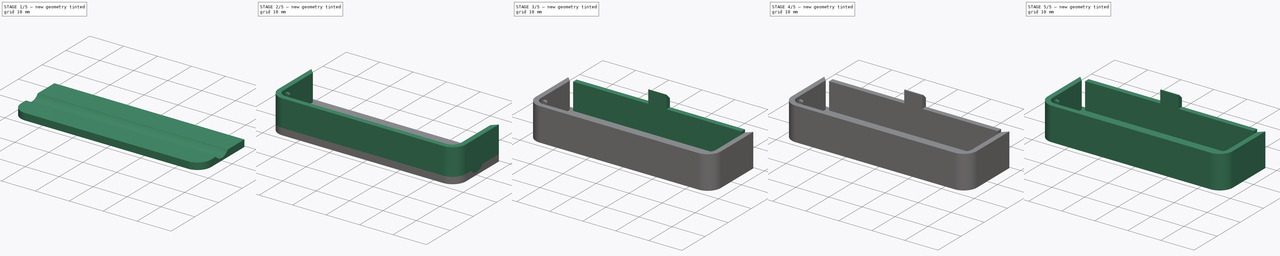
[diagram: build sequence overview — one tinted view per stage of 5, left to right]
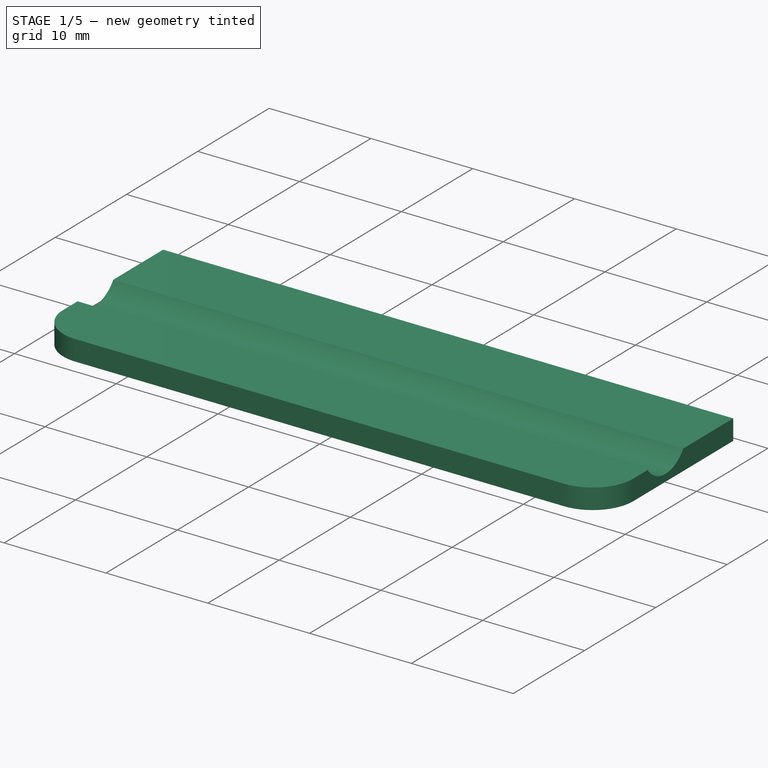
[diagram: stage 1 of 5 — iso view after this stage's code; geometry added in this stage tinted green]
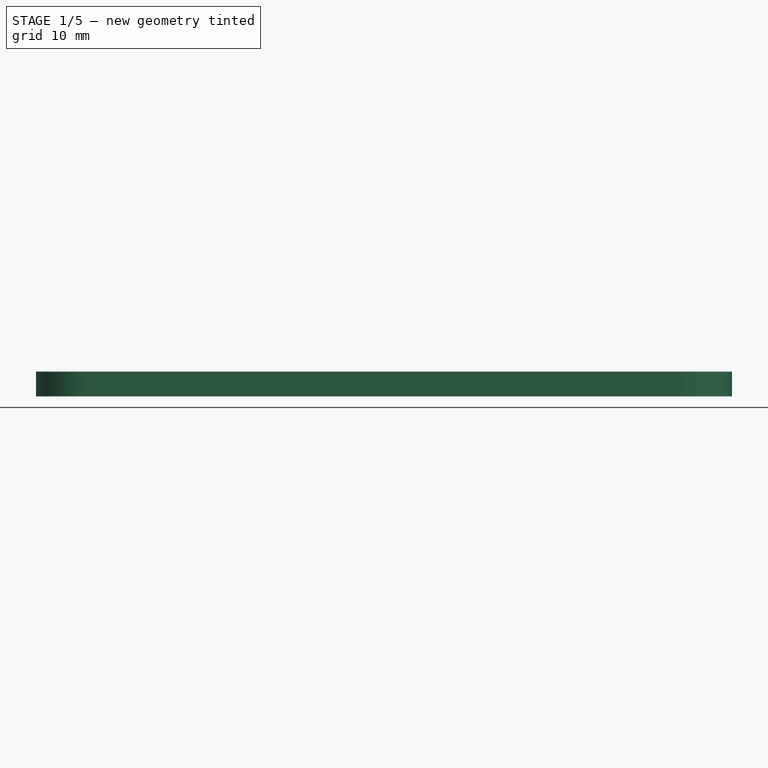
[diagram: stage 1 of 5 — front view after this stage's code; geometry added in this stage tinted green]
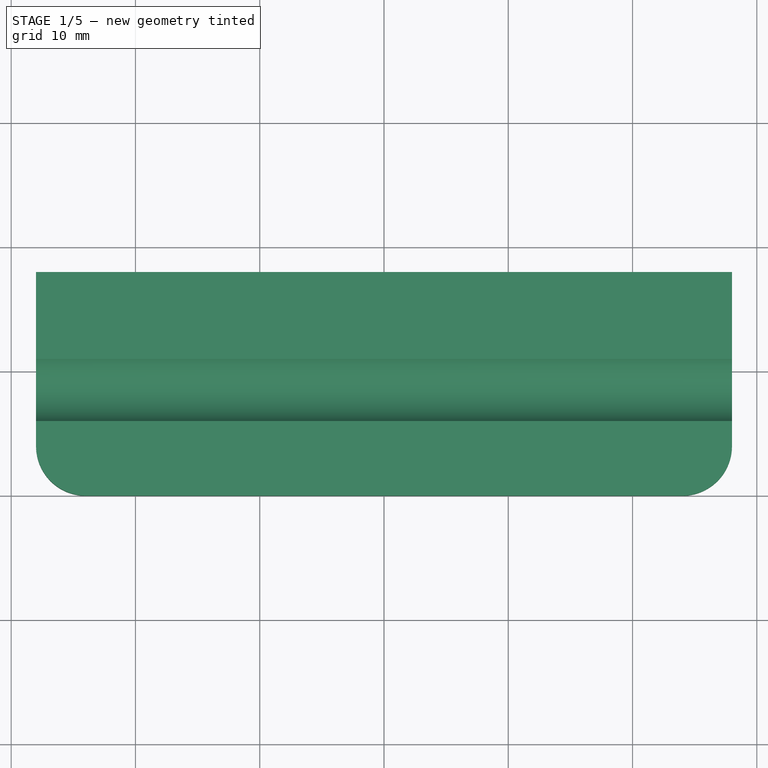
[diagram: stage 1 of 5 — top view after this stage's code; geometry added in this stage tinted green]
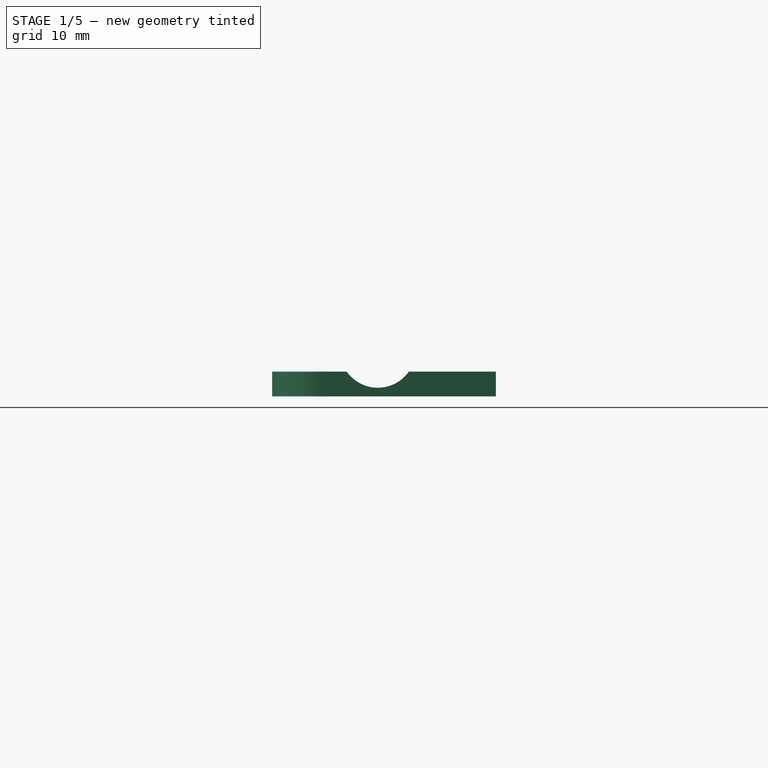
[diagram: stage 1 of 5 — right view after this stage's code; geometry added in this stage tinted green]
FCSTD DOCUMENT  (FreeCAD 0.19.4R1_voidlinux)
Label: battery_container
License: All rights reserved
LicenseURL: http://en.wikipedia.org/wiki/All_rights_reserved
objects: Sketcher::SketchObject×12, PartDesign::Pad×9, Part::Part2DObjectPython×4, Part::Extrusion×4, PartDesign::Fillet×2, PartDesign::CoordinateSystem×2, PartDesign::Pocket×1, PartDesign::Draft×1, PartDesign::Body×1, App::Part×1
note: 49 computed .brp shape members not serialized (recipe doc carries the construction recipe); baked Part::Feature solids carry a one-line shape summary decoded from their .brp

FEATURE [Sketcher::SketchObject] Sketch
  FullyConstrained = true
  MapMode = 5
  Support = -> [XY_Plane001]
  sketch-geometry (6):
    g0: LineSegment StartX=-28 StartY=18 StartZ=0 EndX=28 EndY=18 EndZ=0
    g1: LineSegment StartX=28 StartY=18 StartZ=0 EndX=28 EndY=4 EndZ=0
    g2: LineSegment StartX=24 StartY=7.1045e-12 StartZ=0 EndX=-24 EndY=7.1045e-12 EndZ=0
    g3: LineSegment StartX=-28 StartY=4 StartZ=0 EndX=-28 EndY=18 EndZ=0
    g4: ArcOfCircle CenterX=24 CenterY=4 CenterZ=0 NormalX=0 NormalY=0 NormalZ=1 AngleXU=0 Radius=4 StartAngle=4.71239 EndAngle=6.28319
    g5: ArcOfCircle CenterX=-24 CenterY=4 CenterZ=0 NormalX=0 NormalY=0 NormalZ=1 AngleXU=0 Radius=4 StartAngle=3.14159 EndAngle=4.71239
  constraints (15):
    c: Coincident(g0,g1)
    c: Coincident(g3,g0)
    c: Horizontal(g0)
    c: Vertical(g1)
    c: Vertical(g3)
    c: Tangent(g1,g4) = 1.5708
    c: Tangent(g2,g4) = 1.5708
    c: Tangent(g3,g5) = 1.5708
    c: Tangent(g2,g5) = 1.5708
    c: PointOnObject(g2,g-1)
    c: Symmetric(g2,g2,g-2)
    c: Equal(g4,g5)
    c: Distance(g0) = 56
    c: DistanceY(g2,g0) = 18
    c: Radius(g5) = 4
FEATURE [PartDesign::Pad] Pad
  Direction = (1,1,1)
  Length = 2
  Length2 = 100
  Profile = -> Sketch
  Type = 0
FEATURE [Sketcher::SketchObject] Sketch002  label="groove_sketch"
  ExternalGeometry = -> [Pad]
  FullyConstrained = true
  MapMode = 5
  Placement = pos=(0,0,2) rot=(0,0,1;0rad)
  Support = -> [Pad]
  sketch-geometry (4):
    g0: LineSegment StartX=-28 StartY=11 StartZ=0 EndX=28 EndY=11 EndZ=0
    g1: LineSegment StartX=28 StartY=11 StartZ=0 EndX=28 EndY=6 EndZ=0
    g2: LineSegment StartX=28 StartY=6 StartZ=0 EndX=-28 EndY=6 EndZ=0
    g3: LineSegment StartX=-28 StartY=6 StartZ=0 EndX=-28 EndY=11 EndZ=0
  constraints (12):
    c: Coincident(g0,g1)
    c: Coincident(g1,g2)
    c: Coincident(g2,g3)
    c: Coincident(g3,g0)
    c: Horizontal(g0)
    c: Horizontal(g2)
    c: Vertical(g1)
    c: Vertical(g3)
    c: DistanceY(g3,g3) = 5
    c: PointOnObject(g0,g-4)
    c: PointOnObject(g0,g-3)
    c: DistanceY(g0,g-4) = 7
FEATURE [PartDesign::Pocket] Pocket
  BaseFeature = -> Pad
  Length = 1.5
  Length2 = 100
  Profile = -> Sketch002
  Type = 0
FEATURE [Sketcher::SketchObject] Sketch001  label="walls_sketch"
  FullyConstrained = true
  MapMode = 5
  Placement = pos=(0,0,2) rot=(0,0,1;0rad)
  Support = -> [Pad]
  sketch-geometry (15):
    g0: LineSegment StartX=-28 StartY=18 StartZ=0 EndX=-28 EndY=4 EndZ=0
    g1: LineSegment StartX=-24 StartY=7.1045e-12 StartZ=0 EndX=24 EndY=7.1472e-12 EndZ=0
    g2: LineSegment StartX=28 StartY=4 StartZ=0 EndX=28 EndY=18 EndZ=0
    g3: ArcOfCircle CenterX=-24 CenterY=4 CenterZ=0 NormalX=0 NormalY=0 NormalZ=1 AngleXU=0 Radius=4 StartAngle=3.14159 EndAngle=4.71239
    g4: ArcOfCircle CenterX=24 CenterY=4 CenterZ=0 NormalX=0 NormalY=0 NormalZ=1 AngleXU=0 Radius=4 StartAngle=4.71239 EndAngle=6.28319
    g5: LineSegment StartX=-26.5 StartY=16.5 StartZ=0 EndX=-26.5 EndY=4 EndZ=0
    g6: LineSegment StartX=-28 StartY=4 StartZ=0 EndX=28 EndY=4 EndZ=0
    g7: LineSegment StartX=-28 StartY=18 StartZ=0 EndX=-26.5 EndY=16.5 EndZ=0
    g8: LineSegment StartX=-24 StartY=1.5 StartZ=0 EndX=24 EndY=1.5 EndZ=0
    g9: LineSegment StartX=-24 StartY=4 StartZ=0 EndX=-24 EndY=7.1045e-12 EndZ=0
    g10: LineSegment StartX=24 StartY=4 StartZ=0 EndX=24 EndY=7.1472e-12 EndZ=0
    g11: ArcOfCircle CenterX=-24 CenterY=4 CenterZ=0 NormalX=0 NormalY=0 NormalZ=1 AngleXU=0 Radius=2.5 StartAngle=3.14159 EndAngle=4.71239
    g12: LineSegment StartX=26.5 StartY=16.5 StartZ=0 EndX=26.5 EndY=4 EndZ=0
    g13: ArcOfCircle CenterX=24 CenterY=4 CenterZ=0 NormalX=0 NormalY=0 NormalZ=1 AngleXU=0 Radius=2.5 StartAngle=4.71239 EndAngle=6.28319
    g14: LineSegment StartX=26.5 StartY=16.5 StartZ=0 EndX=28 EndY=18 EndZ=0
  constraints (37):
    c: Tangent(g0,g3) = -1.5708
    c: Tangent(g1,g3) = -1.5708
    c: Tangent(g2,g4) = -1.5708
    c: Tangent(g1,g4) = -1.5708
    c: Vertical(g5)
    c: Coincident(g6,g0)
    c: Coincident(g6,g2)
    c: Coincident(g7,g0)
    c: Coincident(g7,g5)
    c: DistanceX(g0,g5) = 1.5
    c: Horizontal(g8)
    c: Coincident(g9,g3)
    c: Coincident(g9,g1)
    c: Coincident(g10,g4)
    c: Coincident(g10,g1)
    c: Tangent(g5,g11) = -1.5708
    c: Tangent(g8,g11) = -1.5708
    c: PointOnObject(g8,g9)
    c: PointOnObject(g5,g6)
    c: DistanceY(g5,g0) = 1.5
    c: Vertical(g12)
    c: Tangent(g12,g13) = 1.5708
    c: Tangent(g8,g13) = -1.5708
    c: PointOnObject(g12,g6)
    c: PointOnObject(g8,g10)
    c: Coincident(g14,g12)
    c: Coincident(g14,g2)
    c: DistanceY(g12,g2) = 1.5
    c: Symmetric(g1,g1,g-2)
    c: Distance(g1) = 48
    c: Distance(g0) = 14
    c: Vertical(g0)
    c: DistanceX(g12,g2) = 1.5
    c: DistanceY(g2,g2) = 14
    c: Horizontal(g6)
    c: PointOnObject(g1,g-1)
    c: DistanceX(g8,g2) = 4
FEATURE [Sketcher::SketchObject] Sketch003
  ExternalGeometry = -> [Pocket]
  FullyConstrained = true
  MapMode = 5
  Placement = pos=(-28,0,0) rot=(0.57735,-0.57735,-0.57735;2.0944rad)
  Support = -> [Pocket]
  sketch-geometry (5):
    g0: ArcOfCircle CenterX=-8.5 CenterY=3.75385 CenterZ=0 NormalX=0 NormalY=0 NormalZ=1 AngleXU=0 Radius=3.05385 StartAngle=3.75335 EndAngle=5.67143
    g1: LineSegment StartX=-8.5 StartY=3.75385 StartZ=0 EndX=-8.5 EndY=0.7 EndZ=0
    g2: LineSegment StartX=-11 StartY=2 StartZ=0 EndX=-11 EndY=0.5 EndZ=0
    g3: LineSegment StartX=-11 StartY=0.5 StartZ=0 EndX=-6 EndY=0.5 EndZ=0
    g4: LineSegment StartX=-6 StartY=0.5 StartZ=0 EndX=-6 EndY=2 EndZ=0
  constraints (12):
    c: Coincident(g0,g-3)
    c: Coincident(g0,g-5)
    c: Coincident(g1,g0)
    c: PointOnObject(g1,g0)
    c: Vertical(g1)
    c: Coincident(g2,g0)
    c: Coincident(g2,g-4)
    c: Coincident(g3,g2)
    c: Coincident(g3,g-5)
    c: Coincident(g4,g3)
    c: Coincident(g4,g0)
    c: DistanceY(g2,g1) = 0.2
FEATURE [PartDesign::Pad] Pad001
  BaseFeature = -> Pocket
  Direction = (1,1,1)
  Length = 56
  Length2 = 100
  Profile = -> Sketch003
  Reversed = true
  Type = 0
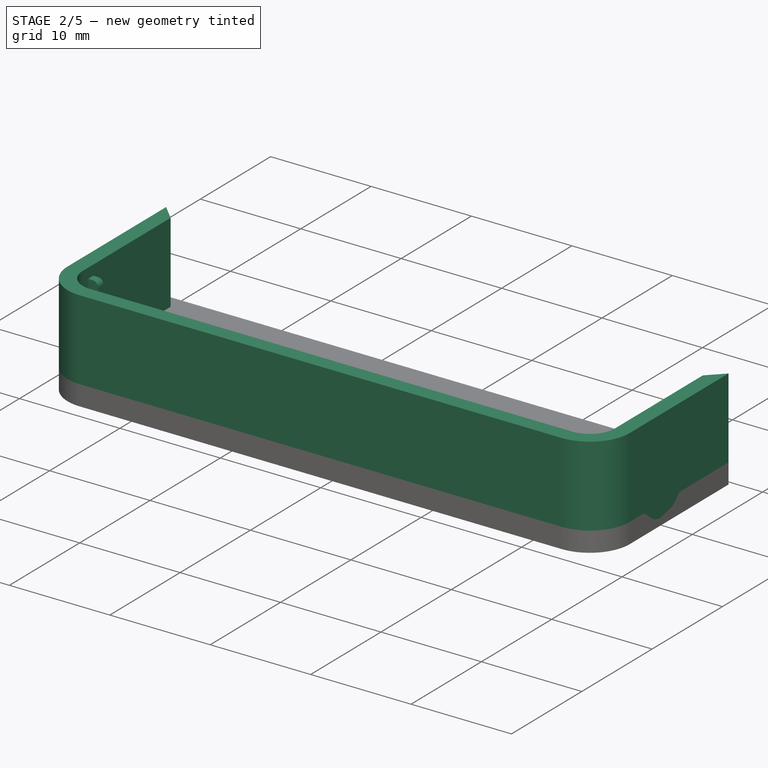
[diagram: stage 2 of 5 — iso view after this stage's code; geometry added in this stage tinted green]
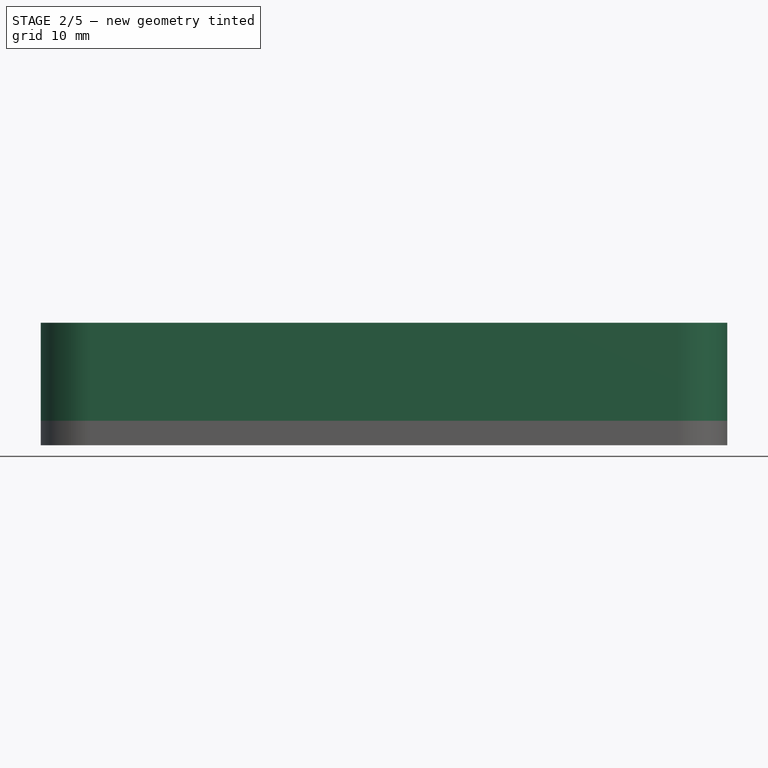
[diagram: stage 2 of 5 — front view after this stage's code; geometry added in this stage tinted green]
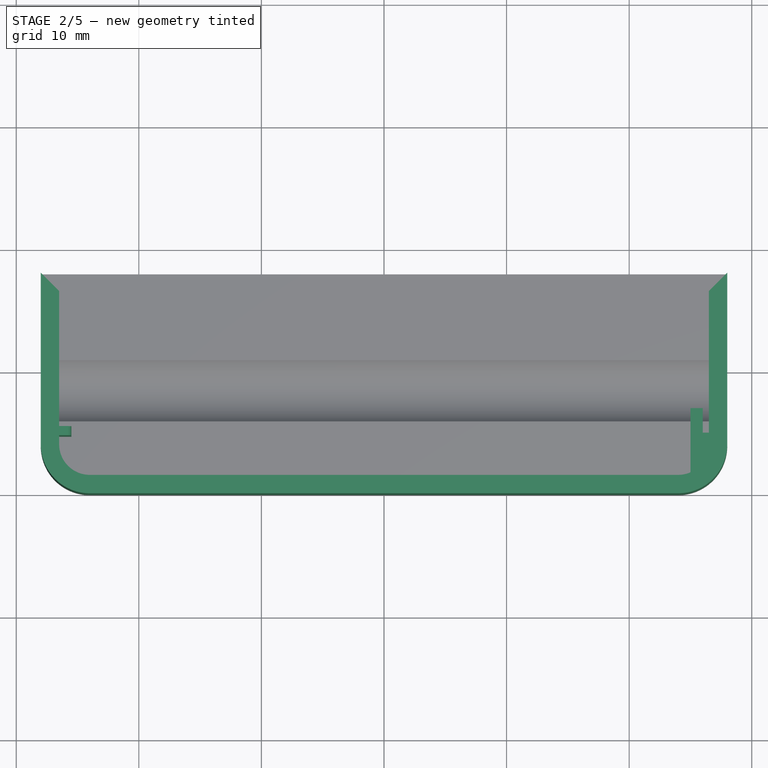
[diagram: stage 2 of 5 — top view after this stage's code; geometry added in this stage tinted green]
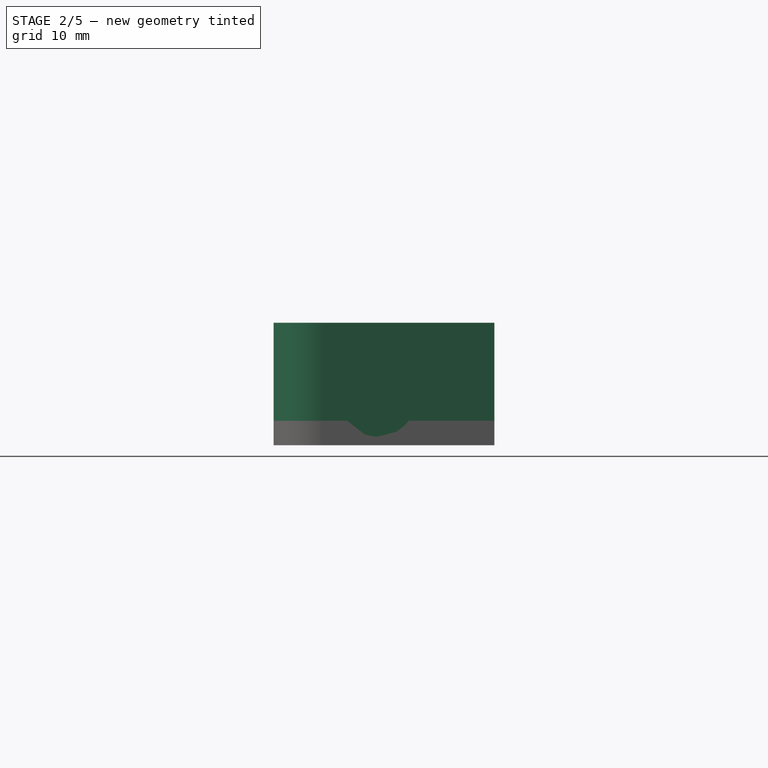
[diagram: stage 2 of 5 — right view after this stage's code; geometry added in this stage tinted green]
FEATURE [PartDesign::Pad] Pad002
  BaseFeature = -> Pad001
  Direction = (1,1,1)
  Length = 8
  Length2 = 2
  Profile = -> Sketch001
  Type = 4
FEATURE [Sketcher::SketchObject] Sketch004
  ExternalGeometry = -> [Pad002]
  FullyConstrained = true
  MapMode = 5
  Placement = pos=(0,0,2) rot=(0,0,1;0rad)
  Support = -> [Pad002]
  sketch-geometry (4):
    g0: LineSegment StartX=-26.5 StartY=5.5 StartZ=0 EndX=-25.5 EndY=5.5 EndZ=0
    g1: LineSegment StartX=-25.5 StartY=5.5 StartZ=0 EndX=-25.5 EndY=4.75 EndZ=0
    g2: LineSegment StartX=-25.5 StartY=4.75 StartZ=0 EndX=-26.5 EndY=4.75 EndZ=0
    g3: LineSegment StartX=-26.5 StartY=4.75 StartZ=0 EndX=-26.5 EndY=5.5 EndZ=0
  constraints (12):
    c: Coincident(g0,g1)
    c: Coincident(g1,g2)
    c: Coincident(g2,g3)
    c: Coincident(g3,g0)
    c: Horizontal(g0)
    c: Horizontal(g2)
    c: Vertical(g1)
    c: Vertical(g3)
    c: PointOnObject(g0,g-4)
    c: DistanceY(g0,g-4) = 0.5
    c: Distance(g2) = 1
    c: Distance(g1) = 0.75
FEATURE [PartDesign::Pad] Pad003
  BaseFeature = -> Pad002
  Direction = (1,1,1)
  Length = 7
  Length2 = 100
  Profile = -> Sketch004
  Type = 0
FEATURE [PartDesign::Fillet] Fillet
  Base = -> Pad003 [Edge82]
  BaseFeature = -> Pad003
  Radius = 0.5
  SupportTransform = false
FEATURE [Sketcher::SketchObject] Sketch005
  ExternalGeometry = -> [Pad002]
  FullyConstrained = true
  MapMode = 5
  Placement = pos=(0,0,2) rot=(0,0,1;0rad)
  Support = -> [Pad002]
  sketch-geometry (6):
    g0: LineSegment StartX=26.5 StartY=5 StartZ=0 EndX=26.5 EndY=1.70871 EndZ=0
    g1: LineSegment StartX=26.5 StartY=1.70871 StartZ=0 EndX=25 EndY=1.70871 EndZ=0
    g2: LineSegment StartX=25 StartY=1.70871 StartZ=0 EndX=25 EndY=7 EndZ=0
    g3: LineSegment StartX=26.5 StartY=5 StartZ=0 EndX=26 EndY=5 EndZ=0
    g4: LineSegment StartX=26 StartY=5 StartZ=0 EndX=26 EndY=7 EndZ=0
    g5: LineSegment StartX=25 StartY=7 StartZ=0 EndX=26 EndY=7 EndZ=0
  constraints (18):
    c: Coincident(g0,g1)
    c: Coincident(g1,g2)
    c: Horizontal(g1)
    c: Vertical(g0)
    c: Vertical(g2)
    c: Coincident(g3,g0)
    c: Horizontal(g3)
    c: Coincident(g4,g3)
    c: Vertical(g4)
    c: Coincident(g5,g2)
    c: Horizontal(g5)
    c: Coincident(g5,g4)
    c: DistanceY(g-4,g2) = 1
    c: DistanceX(g2,g0) = 1.5
    c: Distance(g5) = 1
    c: PointOnObject(g0,g-4)
    c: PointOnObject(g1,g-5)
    c: Distance(g4) = 2
FEATURE [PartDesign::Pad] Pad004
  BaseFeature = -> Fillet
  Direction = (1,1,1)
  Length = 5
  Length2 = 100
  Profile = -> Sketch005
  Type = 0
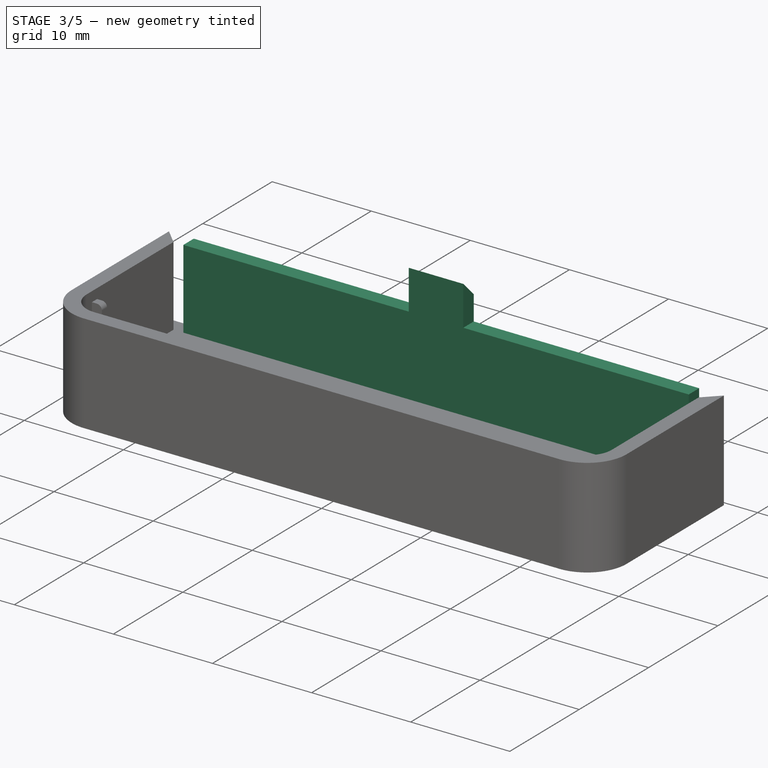
[diagram: stage 3 of 5 — iso view after this stage's code; geometry added in this stage tinted green]
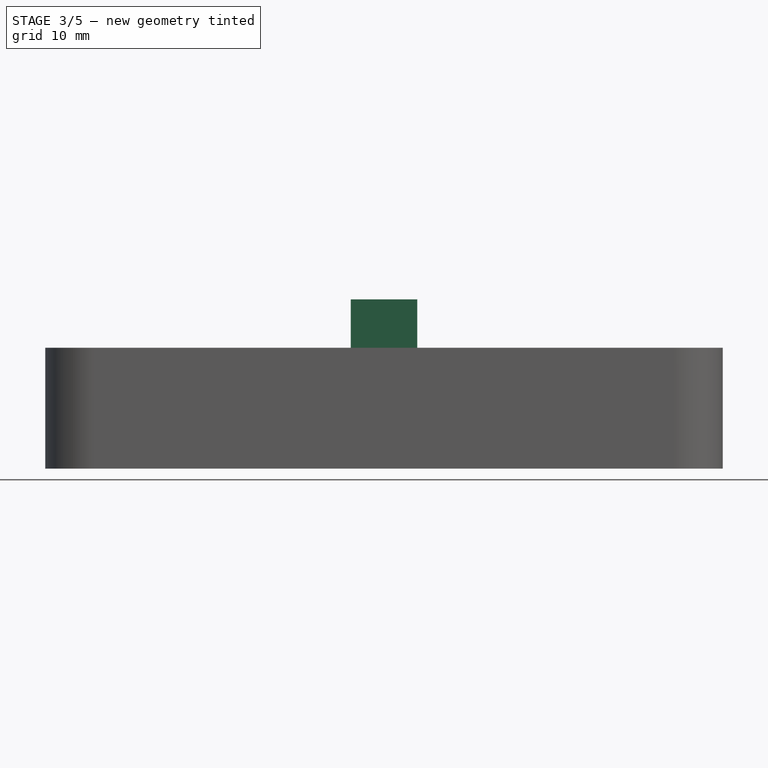
[diagram: stage 3 of 5 — front view after this stage's code; geometry added in this stage tinted green]
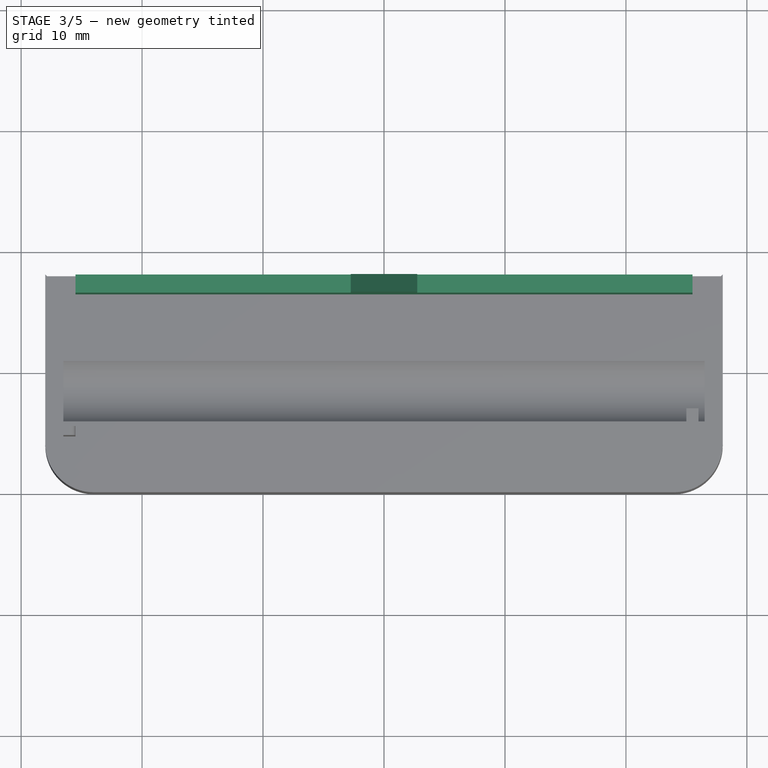
[diagram: stage 3 of 5 — top view after this stage's code; geometry added in this stage tinted green]
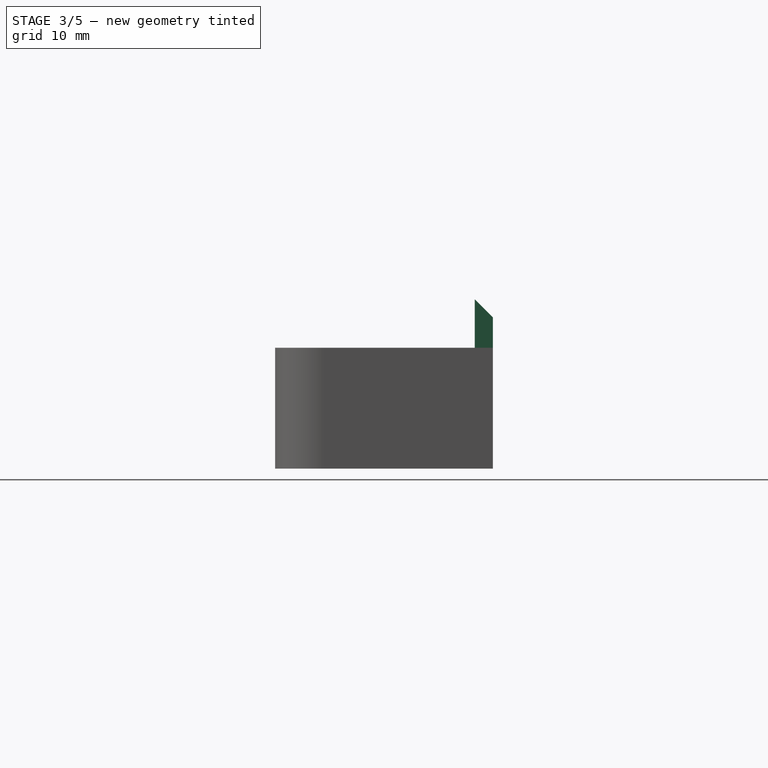
[diagram: stage 3 of 5 — right view after this stage's code; geometry added in this stage tinted green]
FEATURE [Sketcher::SketchObject] Sketch006
  ExternalGeometry = -> [Pad004]
  FullyConstrained = true
  MapMode = 5
  Placement = pos=(0,0,2) rot=(0,0,1;0rad)
  Support = -> [Pad004]
  sketch-geometry (5):
    g0: LineSegment StartX=-25.5 StartY=16.5 StartZ=0 EndX=25.5 EndY=16.5 EndZ=0
    g1: LineSegment StartX=25.5 StartY=16.5 StartZ=0 EndX=25.5 EndY=18 EndZ=0
    g2: LineSegment StartX=25.5 StartY=18 StartZ=0 EndX=-25.5 EndY=18 EndZ=0
    g3: LineSegment StartX=-25.5 StartY=18 StartZ=0 EndX=-25.5 EndY=16.5 EndZ=0
    g4: LineSegment StartX=-26.5 StartY=16.5 StartZ=0 EndX=26.5 EndY=16.5 EndZ=0
  constraints (13):
    c: Coincident(g0,g1)
    c: Coincident(g1,g2)
    c: Coincident(g2,g3)
    c: Coincident(g3,g0)
    c: Horizontal(g2)
    c: Vertical(g1)
    c: Vertical(g3)
    c: Symmetric(g0,g0,g-2)
    c: PointOnObject(g2,g-3)
    c: Coincident(g4,g-4)
    c: Coincident(g4,g-5)
    c: PointOnObject(g0,g4)
    c: DistanceX(g4,g0) = 1
FEATURE [PartDesign::Pad] Pad005
  BaseFeature = -> Pad004
  Direction = (1,1,1)
  Length = 8
  Length2 = 100
  Profile = -> Sketch006
  Type = 0
FEATURE [Sketcher::SketchObject] Sketch007
  ExternalGeometry = -> [Pad005]
  FullyConstrained = true
  MapMode = 5
  Placement = pos=(0,0,10) rot=(0,0,1;0rad)
  Support = -> [Pad005]
  sketch-geometry (4):
    g0: LineSegment StartX=-2.75 StartY=16.5 StartZ=0 EndX=2.75 EndY=16.5 EndZ=0
    g1: LineSegment StartX=2.75 StartY=16.5 StartZ=0 EndX=2.75 EndY=18 EndZ=0
    g2: LineSegment StartX=2.75 StartY=18 StartZ=0 EndX=-2.75 EndY=18 EndZ=0
    g3: LineSegment StartX=-2.75 StartY=18 StartZ=0 EndX=-2.75 EndY=16.5 EndZ=0
  constraints (11):
    c: Coincident(g0,g1)
    c: Coincident(g1,g2)
    c: Coincident(g2,g3)
    c: Coincident(g3,g0)
    c: Horizontal(g2)
    c: Vertical(g1)
    c: Vertical(g3)
    c: PointOnObject(g2,g-3)
    c: PointOnObject(g0,g-4)
    c: Symmetric(g0,g0,g-2)
    c: Distance(g2) = 5.5
FEATURE [PartDesign::Pad] Pad006
  BaseFeature = -> Pad005
  Direction = (1,1,1)
  Length = 4
  Length2 = 100
  Profile = -> Sketch007
  Type = 0
FEATURE [PartDesign::Draft] Draft
  Angle = 45
  Base = -> Pad006 [Face49]
  BaseFeature = -> Pad006
  Reversed = true
  SupportTransform = false
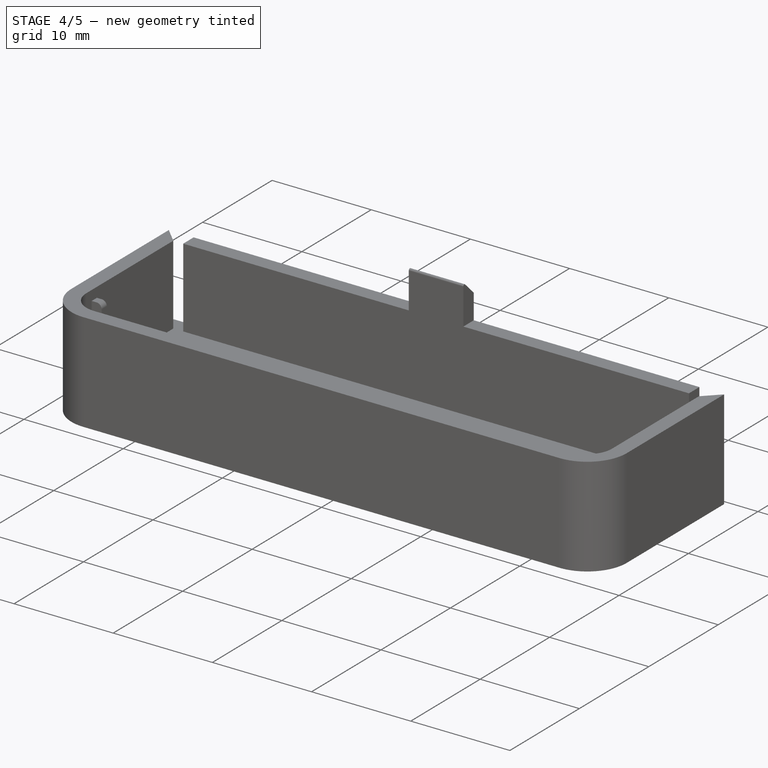
[diagram: stage 4 of 5 — iso view after this stage's code; geometry added in this stage tinted green]
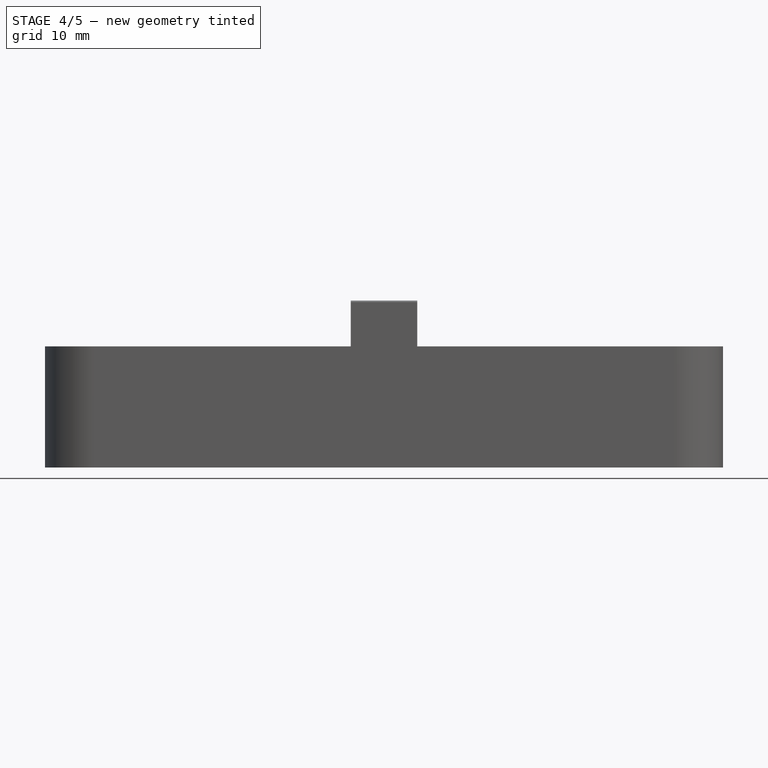
[diagram: stage 4 of 5 — front view after this stage's code; geometry added in this stage tinted green]
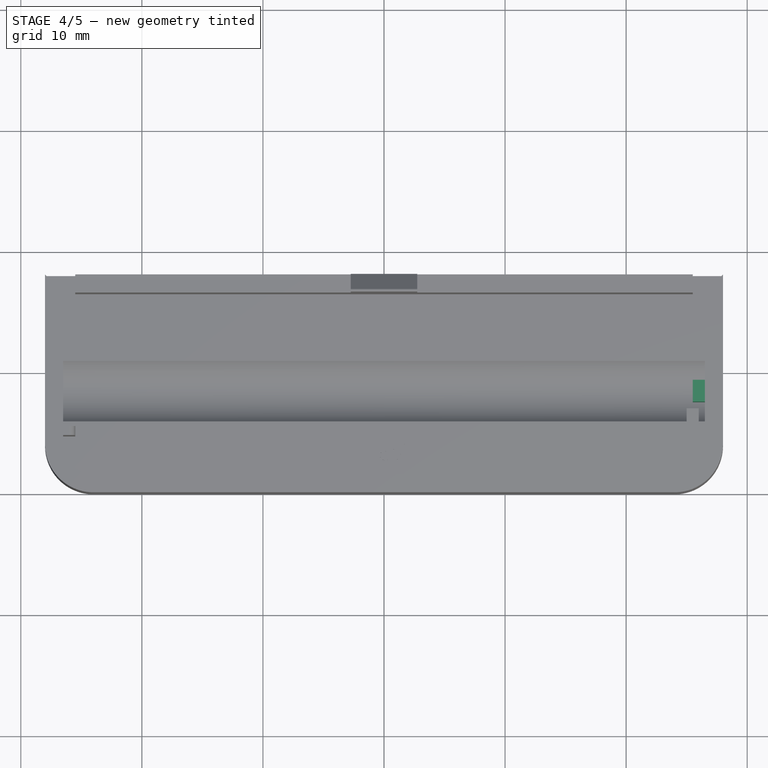
[diagram: stage 4 of 5 — top view after this stage's code; geometry added in this stage tinted green]
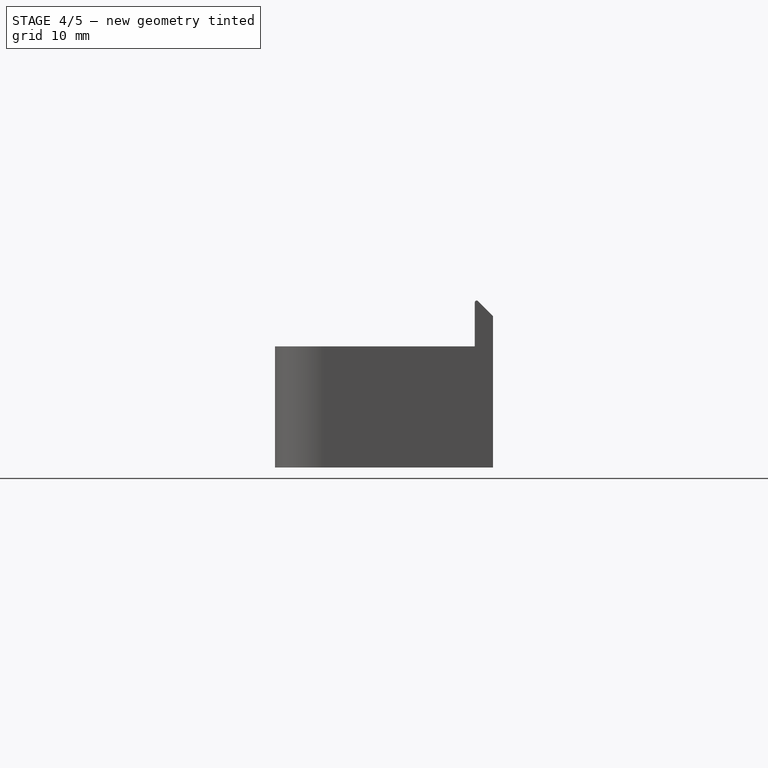
[diagram: stage 4 of 5 — right view after this stage's code; geometry added in this stage tinted green]
FEATURE [PartDesign::Fillet] Fillet001
  Base = -> Draft [Edge123]
  BaseFeature = -> Draft
  Radius = 0.15
  SupportTransform = false
FEATURE [Sketcher::SketchObject] Sketch008  label="3A8_outline"
  ExternalGeometry = -> [Fillet001]
  FullyConstrained = true
  MapMode = 5
  Placement = pos=(0,0,2) rot=(0,0,1;0rad)
  Support = -> [Fillet001]
  sketch-geometry (4):
    g0: LineSegment StartX=-21.5 StartY=15.5 StartZ=0 EndX=-15.5 EndY=15.5 EndZ=0
    g1: LineSegment StartX=-15.5 StartY=15.5 StartZ=0 EndX=-15.5 EndY=12.5 EndZ=0
    g2: LineSegment StartX=-15.5 StartY=12.5 StartZ=0 EndX=-21.5 EndY=12.5 EndZ=0
    g3: LineSegment StartX=-21.5 StartY=12.5 StartZ=0 EndX=-21.5 EndY=15.5 EndZ=0
  constraints (12):
    c: Coincident(g0,g1)
    c: Coincident(g1,g2)
    c: Coincident(g2,g3)
    c: Coincident(g3,g0)
    c: Horizontal(g0)
    c: Horizontal(g2)
    c: Vertical(g1)
    c: Vertical(g3)
    c: DistanceY(g0,g-4) = 1
    c: DistanceX(g-3,g0) = 5
    c: Distance(g1) = 3
    c: Distance(g2) = 6
FEATURE [Sketcher::SketchObject] Sketch009  label="battery_sign_outline"
  ExternalGeometry = -> [Fillet001]
  FullyConstrained = true
  MapMode = 5
  Placement = pos=(0,0,2) rot=(0,0,1;0rad)
  Support = -> [Fillet001]
  sketch-geometry (4):
    g0: LineSegment StartX=-7.5 StartY=4.5 StartZ=0 EndX=7.5 EndY=4.5 EndZ=0
    g1: LineSegment StartX=7.5 StartY=4.5 StartZ=0 EndX=7.5 EndY=2.5 EndZ=0
    g2: LineSegment StartX=7.5 StartY=2.5 StartZ=0 EndX=-7.5 EndY=2.5 EndZ=0
    g3: LineSegment StartX=-7.5 StartY=2.5 StartZ=0 EndX=-7.5 EndY=4.5 EndZ=0
  constraints (11):
    c: Coincident(g0,g1)
    c: Coincident(g1,g2)
    c: Coincident(g2,g3)
    c: Coincident(g3,g0)
    c: Horizontal(g0)
    c: Vertical(g1)
    c: Vertical(g3)
    c: Symmetric(g1,g2,g-2)
    c: Distance(g0) = 15
    c: DistanceY(g-3,g2) = 1
    c: Distance(g3) = 2
FEATURE [Sketcher::SketchObject] Sketch010
  ExternalGeometry = -> [Sketch009]
  FullyConstrained = true
  MapMode = 5
  Placement = pos=(0,0,2) rot=(0,0,1;0rad)
  Support = -> [Fillet001]
  sketch-geometry (17):
    g0: LineSegment StartX=-4.1 StartY=4.5 StartZ=0 EndX=4.1 EndY=4.5 EndZ=0
    g1: LineSegment StartX=4.1 StartY=2.5 StartZ=0 EndX=-4.1 EndY=2.5 EndZ=0
    g2: LineSegment StartX=-4.1 StartY=2.5 StartZ=0 EndX=-4.1 EndY=4.5 EndZ=0
    g3: LineSegment StartX=4.1 StartY=4.5 StartZ=0 EndX=4.1 EndY=4 EndZ=0
    g4: LineSegment StartX=4.1 StartY=4 StartZ=0 EndX=4.9 EndY=4 EndZ=0
    g5: LineSegment StartX=4.9 StartY=4 StartZ=0 EndX=4.9 EndY=3 EndZ=0
    g6: LineSegment StartX=4.9 StartY=3 StartZ=0 EndX=4.1 EndY=3 EndZ=0
    g7: LineSegment StartX=4.1 StartY=3 StartZ=0 EndX=4.1 EndY=2.5 EndZ=0
    g8: LineSegment StartX=4.9 StartY=3 StartZ=0 EndX=-4.1 EndY=3 EndZ=0
    g9: LineSegment StartX=-4 StartY=4.4 StartZ=0 EndX=4 EndY=4.4 EndZ=0
    g10: LineSegment StartX=4 StartY=4.4 StartZ=0 EndX=4 EndY=3.9 EndZ=0
    g11: LineSegment StartX=4 StartY=3.9 StartZ=0 EndX=4.8 EndY=3.9 EndZ=0
    g12: LineSegment StartX=4.8 StartY=3.9 StartZ=0 EndX=4.8 EndY=3.1 EndZ=0
    g13: LineSegment StartX=4.8 StartY=3.1 StartZ=0 EndX=4 EndY=3.1 EndZ=0
    g14: LineSegment StartX=4 StartY=3.1 StartZ=0 EndX=4 EndY=2.6 EndZ=0
    g15: LineSegment StartX=4 StartY=2.6 StartZ=0 EndX=-4 EndY=2.6 EndZ=0
    g16: LineSegment StartX=-4 StartY=2.6 StartZ=0 EndX=-4 EndY=4.4 EndZ=0
  constraints (50):
    c: Coincident(g1,g2)
    c: Coincident(g2,g0)
    c: Horizontal(g0)
    c: Horizontal(g1)
    c: Vertical(g2)
    c: Equal(g2,g-3)
    c: PointOnObject(g1,g-4)
    c: Coincident(g3,g0)
    c: Vertical(g3)
    c: Coincident(g4,g3)
    c: Horizontal(g4)
    c: Coincident(g5,g4)
    c: Vertical(g5)
    c: Coincident(g6,g5)
    c: Horizontal(g6)
    c: Coincident(g7,g6)
    c: Coincident(g7,g1)
    c: Equal(g3,g7)
    c: Equal(g4,g6)
    c: Vertical(g7)
    c: Distance(g5) = 1
    c: Coincident(g8,g5)
    c: PointOnObject(g8,g2)
    c: Symmetric(g6,g8,g-2)
    c: DistanceX(g0,g4) = 9
    c: Distance(g6) = 0.8
    c: Horizontal(g9)
    c: Coincident(g10,g9)
    c: Vertical(g10)
    c: Coincident(g11,g10)
    c: Horizontal(g11)
    c: Coincident(g12,g11)
    c: Vertical(g12)
    c: Coincident(g13,g12)
    c: Horizontal(g13)
    c: Coincident(g14,g13)
    c: Vertical(g14)
    c: Coincident(g15,g14)
    c: Horizontal(g15)
    c: Coincident(g16,g15)
    c: Coincident(g16,g9)
    c: Vertical(g16)
    c: DistanceY(g9,g0) = 0.1
    c: DistanceX(g1,g15) = 0.1
    c: DistanceY(g1,g15) = 0.1
    c: DistanceX(g9,g0) = 0.1
    c: DistanceY(g10,g3) = 0.1
    c: DistanceX(g11,g4) = 0.1
    c: Equal(g11,g13)
    c: Equal(g14,g10)
FEATURE [PartDesign::Pad] Pad007
  BaseFeature = -> Fillet001
  Direction = (1,1,1)
  Length = 0.1
  Length2 = 100
  Profile = -> Sketch010
  Type = 0
FEATURE [Part::Part2DObjectPython] ShapeString003  label="plus_string001"  # Draft 2D object (typed FeaturePython)
  FontFile = <path>
  Placement = pos=(-1.5,2.8,2) rot=(0,0,1;0rad)
  Size = 1.6
  String = 1.5V
  Tracking = 0
FEATURE [Part::Extrusion] Extrude003  label="1dot5volt"
  Base = -> ShapeString003
  Dir = (0,0,1)
  DirMode = 2
  FaceMakerClass = Part::FaceMakerBullseye
  LengthFwd = 0.1
  LengthRev = 0
  Solid = false
  Symmetric = false
FEATURE [Sketcher::SketchObject] Sketch011
  ExternalGeometry = -> [Pad007]
  FullyConstrained = true
  MapMode = 5
  Placement = pos=(26.5,0,0) rot=(0.57735,-0.57735,-0.57735;2.0944rad)
  Support = -> [Pad007]
  sketch-geometry (5):
    g0: LineSegment StartX=-9.4 StartY=4.33563 StartZ=0 EndX=-7.6 EndY=4.33563 EndZ=0
    g1: LineSegment StartX=-9.4 StartY=4.33563 StartZ=0 EndX=-9.4 EndY=0.835632 EndZ=0
    g2: LineSegment StartX=-7.6 StartY=4.33563 StartZ=0 EndX=-7.6 EndY=0.835632 EndZ=0
    g3: ArcOfCircle CenterX=-8.5 CenterY=3.75385 CenterZ=0 NormalX=0 NormalY=0 NormalZ=1 AngleXU=0 Radius=3.05385 StartAngle=4.41324 EndAngle=5.01154
    g4: LineSegment StartX=-8.5 StartY=3.75385 StartZ=0 EndX=-8.5 EndY=4.33563 EndZ=0
  constraints (14):
    c: Horizontal(g0)
    c: Coincident(g1,g0)
    c: PointOnObject(g1,g-3)
    c: Vertical(g1)
    c: Coincident(g2,g0)
    c: PointOnObject(g2,g-3)
    c: Coincident(g3,g1)
    c: Coincident(g3,g2)
    c: Distance(g0) = 1.8
    c: Distance(g1) = 3.5
    c: Coincident(g4,g-3)
    c: PointOnObject(g4,g0)
    c: Symmetric(g0,g0,g4)
    c: Coincident(g3,g4)
FEATURE [PartDesign::Pad] Pad008
  BaseFeature = -> Pad007
  Direction = (1,1,1)
  Length = 1
  Length2 = 100
  Profile = -> Sketch011
  Type = 0
FEATURE [PartDesign::Body] Body
  Group = -> [Sketch,Pad,Sketch002,Pocket,Sketch001,Sketch003,Pad001,Pad002,Sketch004,Pad003,Fillet,Sketch005,Pad004,Sketch006,Pad005,Sketch007,Pad006,Draft,Fillet001,Sketch008,Sketch009,Sketch010,Pad007,Sketch011,Pad008]
  Origin = -> Origin001
  Tip = -> Pad008
FEATURE [PartDesign::CoordinateSystem] LCS_plus_bottom
  AttacherType = Attacher::AttachEngine3D
  MapMode = 45
  Placement = pos=(26,8.5,4.33563) rot=(0,0,1;0rad)
  Support = -> [Pad008]
FEATURE [PartDesign::CoordinateSystem] LCS_minus_face
  AttacherType = Attacher::AttachEngine3D
  MapMode = 13
  Placement = pos=(-26.5,12.3333,7.33333) rot=(0.57735,0.57735,0.57735;2.0944rad)
  Support = -> [Pad008]
FEATURE [App::Part] Part  label="battery_container"
  Group = -> [Body,ShapeString,Extrude,ShapeString001,Extrude001,ShapeString002,Extrude002,ShapeString003,Extrude003,LCS_plus_bottom,LCS_minus_face]
  Origin = -> Origin
note: 4 file-system paths scrubbed to <path> (originals preserved in the JSON sidecar)
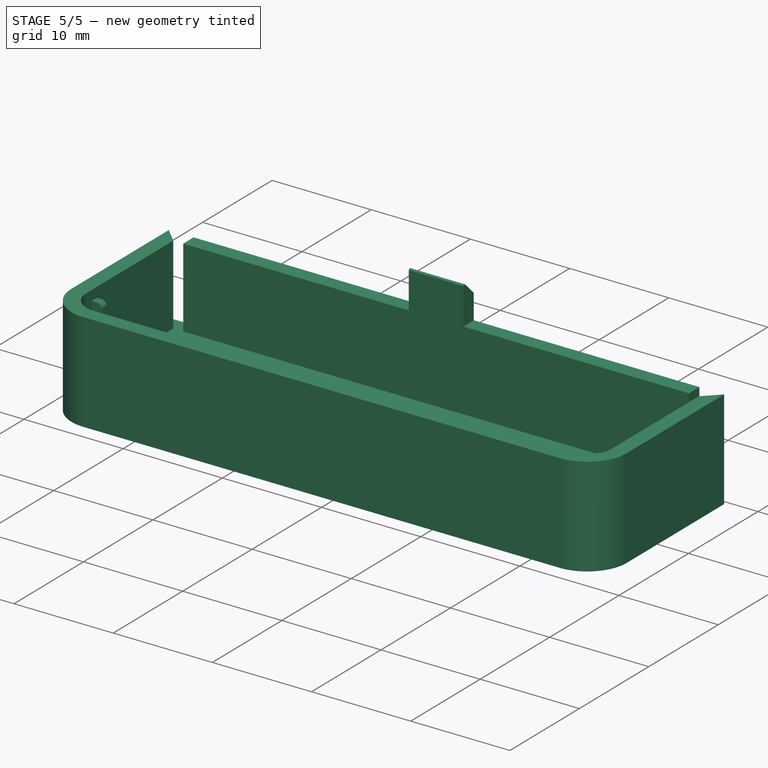
[diagram: stage 5 of 5 — iso view after this stage's code; geometry added in this stage tinted green]
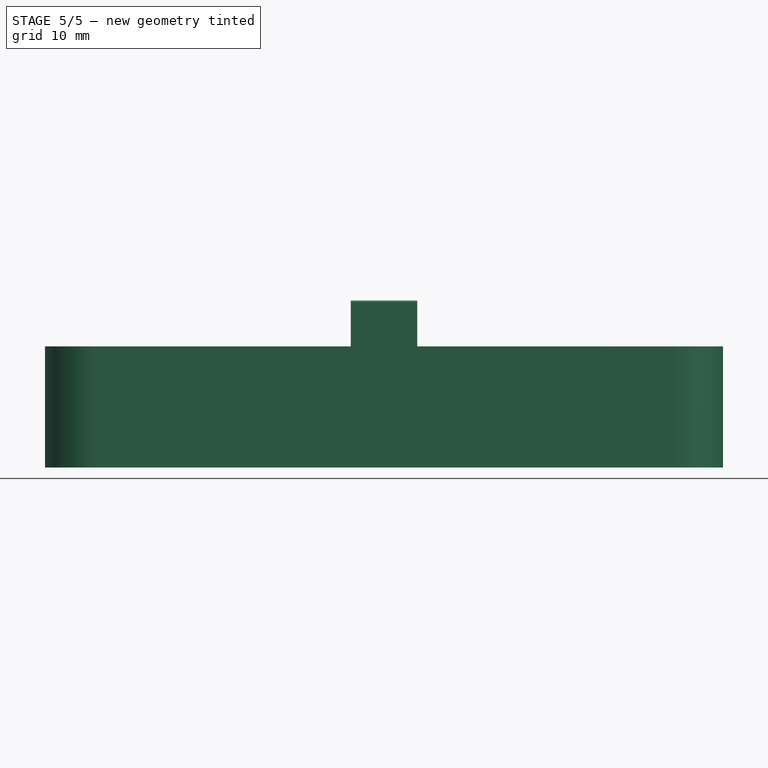
[diagram: stage 5 of 5 — front view after this stage's code; geometry added in this stage tinted green]
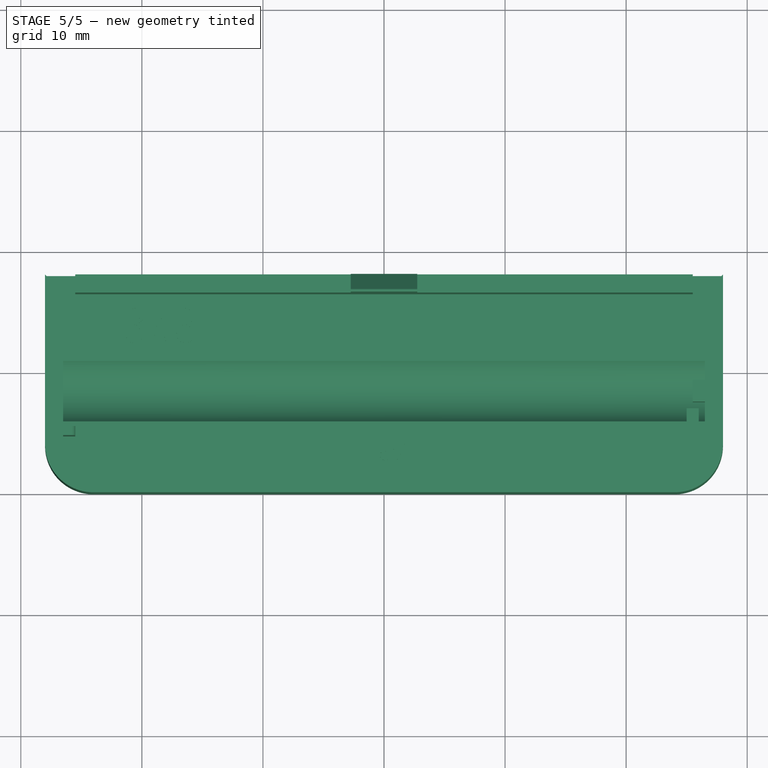
[diagram: stage 5 of 5 — top view after this stage's code; geometry added in this stage tinted green]
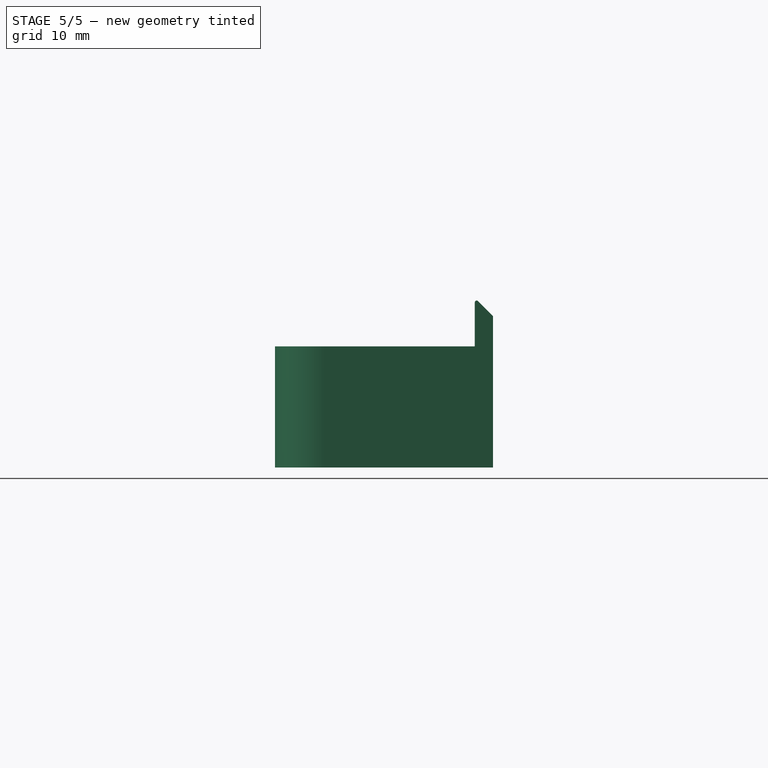
[diagram: stage 5 of 5 — right view after this stage's code; geometry added in this stage tinted green]
FEATURE [Part::Part2DObjectPython] ShapeString  label="3A8_string"  # Draft 2D object (typed FeaturePython)
  FontFile = <path>
  Placement = pos=(-21.5,12.5,2) rot=(0,0,1;0rad)
  Size = 1.8
  String = 3A8
  Tracking = 0.3
FEATURE [Part::Extrusion] Extrude  label="3A8"
  Base = -> ShapeString
  Dir = (0,0,1)
  DirMode = 2
  FaceMakerClass = Part::FaceMakerBullseye
  LengthFwd = 0.1
  LengthRev = 0
  Solid = false
  Symmetric = false
FEATURE [Part::Part2DObjectPython] ShapeString001  label="plus_string"  # Draft 2D object (typed FeaturePython)
  FontFile = <path>
  Placement = pos=(-7.5,2.1,2) rot=(0,0,1;0rad)
  Size = 4
  String = -
  Tracking = 0
FEATURE [Part::Extrusion] Extrude001  label="minus"
  Base = -> ShapeString001
  Dir = (0,0,1)
  DirMode = 2
  FaceMakerClass = Part::FaceMakerBullseye
  LengthFwd = 0.1
  LengthRev = 0
  Solid = false
  Symmetric = false
FEATURE [Part::Part2DObjectPython] ShapeString002  label="minus_string"  # Draft 2D object (typed FeaturePython)
  FontFile = <path>
  Placement = pos=(5.5,2.3,2) rot=(0,0,1;0rad)
  Size = 3
  String = +
  Tracking = 0
FEATURE [Part::Extrusion] Extrude002  label="plus"
  Base = -> ShapeString002
  Dir = (0,0,1)
  DirMode = 2
  FaceMakerClass = Part::FaceMakerBullseye
  LengthFwd = 0.1
  LengthRev = 0
  Solid = false
  Symmetric = false
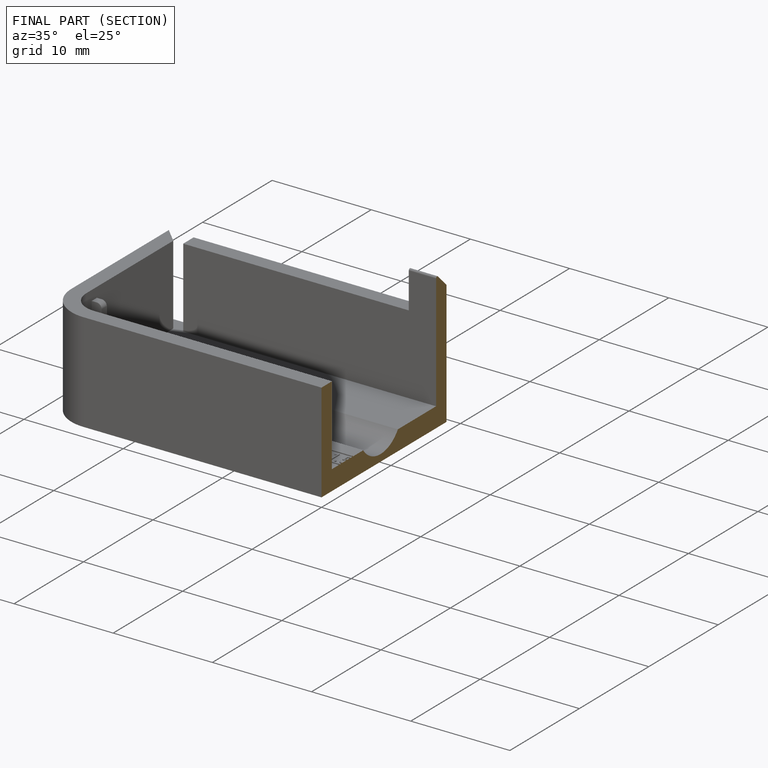
[diagram: finished part — half-section view (interior)]
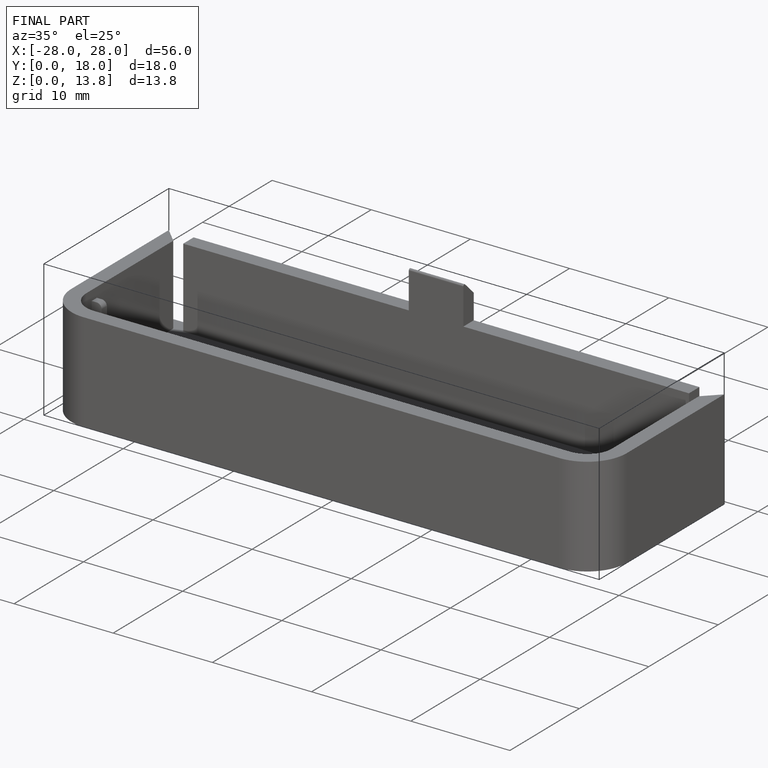
[diagram: finished part — iso view with bounding-box wireframe]
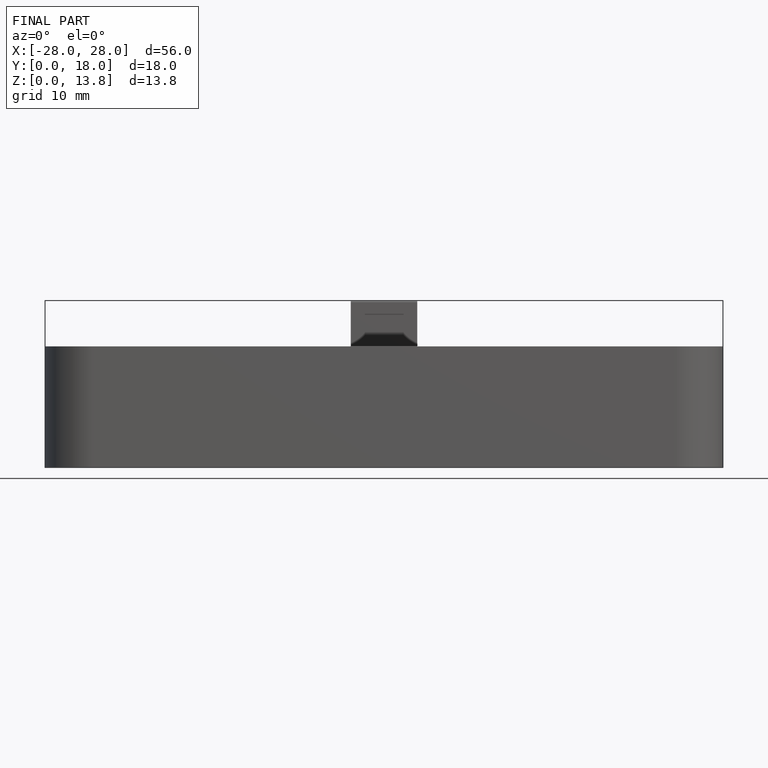
[diagram: finished part — front view with bounding-box wireframe]
